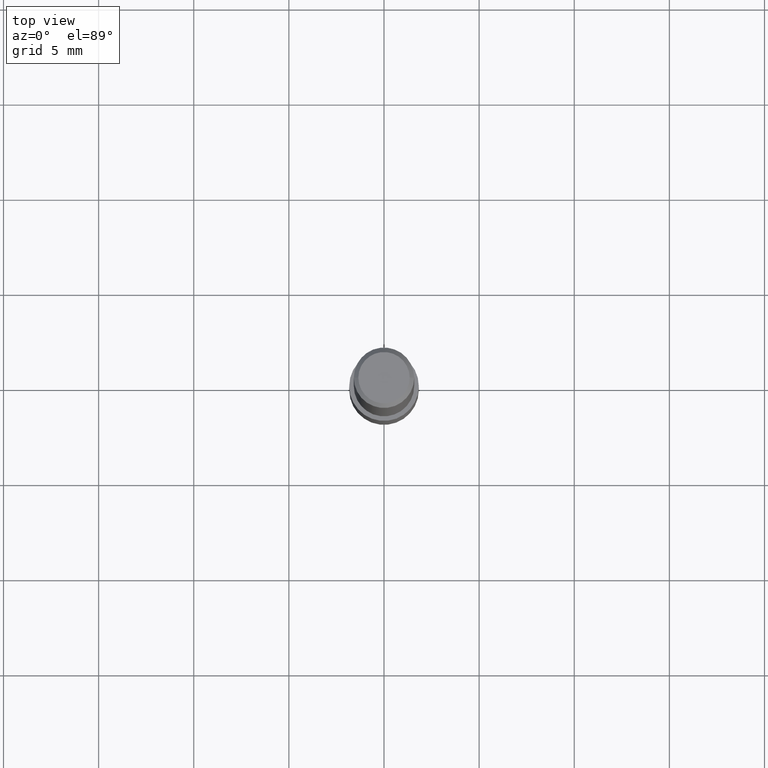
[diagram: clean part render]
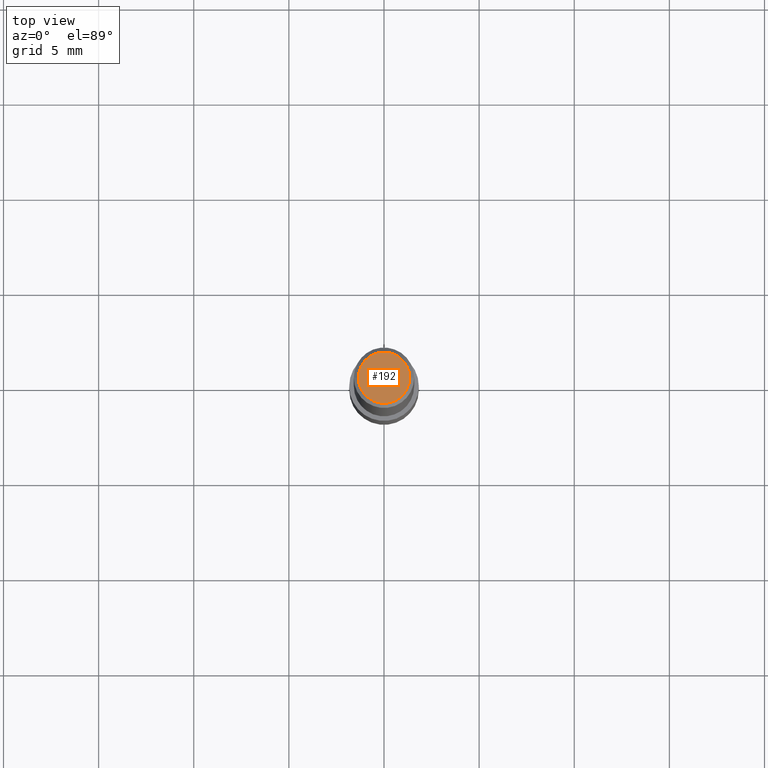
[diagram: same view with one face highlighted and labeled with its STEP entity id]
A machine part, top view. The second image highlights one B-rep face of the part: STEP entity #192.
In plain terms, the highlighted planar face has unit normal (0, -0, -1).
Its self-contained STEP definition (entity closure, byte-faithful):
#43 = DIRECTION ( 'NONE',  ( -1.000000000000000000, 6.982962677686265922E-15, -4.876176775795935793E-29 ) ) ;
#45 = DIRECTION ( 'NONE',  ( 2.438088387897960049E-29, -3.491481338843145188E-15, -1.000000000000000000 ) ) ;
#49 = CARTESIAN_POINT ( 'NONE',  ( -7.487088864773345706E-50, 1.068957861474247695E-35, 3.061616997868395197E-21 ) ) ;
#55 = PLANE ( 'NONE',  #211 ) ;
#87 = AXIS2_PLACEMENT_3D ( 'NONE', #49, #264, #210 ) ;
#89 = CARTESIAN_POINT ( 'NONE',  ( -7.487088864773345706E-50, 1.068957861474247695E-35, 3.061616997868395197E-21 ) ) ;
#97 = EDGE_CURVE ( 'NONE', #157, #258, #288, .T. ) ;
#98 = ORIENTED_EDGE ( 'NONE', *, *, #218, .T. ) ;
#113 = CARTESIAN_POINT ( 'NONE',  ( -0.05312499999999999861, 3.873362110279099094E-16, 3.061616995216862494E-21 ) ) ;
#115 = DIRECTION ( 'NONE',  ( 1.000000000000000000, -6.982962677686266711E-15, 4.876176628004948512E-29 ) ) ;
#119 = CIRCLE ( 'NONE', #129, 0.05312499999999999861 ) ;
#122 = ORIENTED_EDGE ( 'NONE', *, *, #97, .T. ) ;
#129 = AXIS2_PLACEMENT_3D ( 'NONE', #89, #230, #115 ) ;
#157 = VERTEX_POINT ( 'NONE', #113 ) ;
#189 = FACE_OUTER_BOUND ( 'NONE', #231, .T. ) ;
#192 = ADVANCED_FACE ( 'NONE', ( #189 ), #55, .F. ) ;
#202 = CARTESIAN_POINT ( 'NONE',  ( 0.05312499999999999861, -4.129888592719939842E-16, 3.061617000609493422E-21 ) ) ;
#210 = DIRECTION ( 'NONE',  ( 1.000000000000000000, -6.982962677686266711E-15, 4.876176628004948512E-29 ) ) ;
#211 = AXIS2_PLACEMENT_3D ( 'NONE', #323, #45, #43 ) ;
#218 = EDGE_CURVE ( 'NONE', #258, #157, #119, .T. ) ;
#230 = DIRECTION ( 'NONE',  ( -2.445468806185136597E-29, 3.491481338843145583E-15, 1.000000000000000000 ) ) ;
#231 = EDGE_LOOP ( 'NONE', ( #122, #98 ) ) ;
#258 = VERTEX_POINT ( 'NONE', #202 ) ;
#264 = DIRECTION ( 'NONE',  ( -2.445468806185136597E-29, 3.491481338843145583E-15, 1.000000000000000000 ) ) ;
#288 = CIRCLE ( 'NONE', #87, 0.05312499999999999861 ) ;
#323 = CARTESIAN_POINT ( 'NONE',  ( -3.743544432386672853E-50, 5.344789307371238476E-36, 1.530808498934197599E-21 ) ) ;